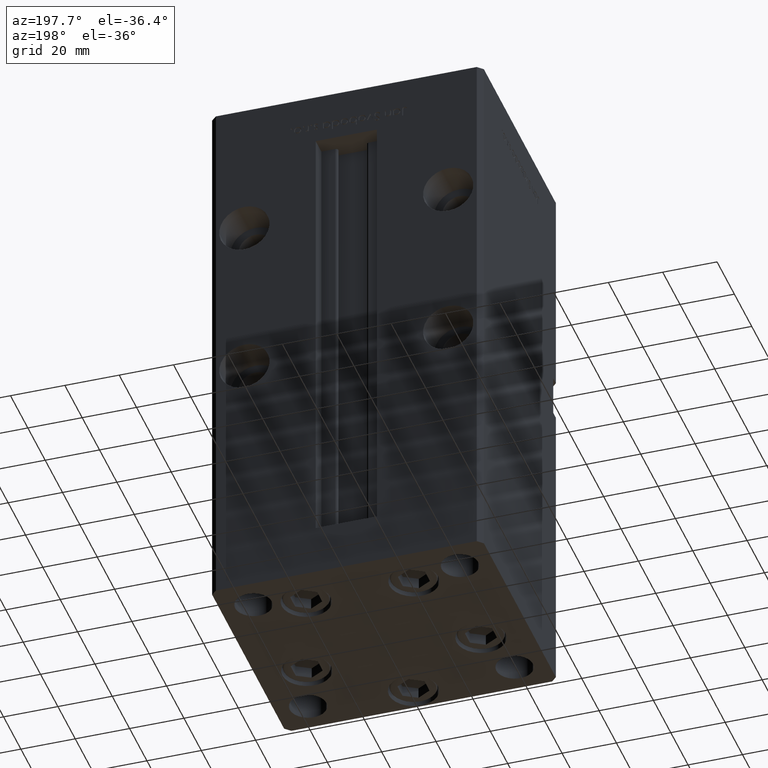
[diagram: clean part render]
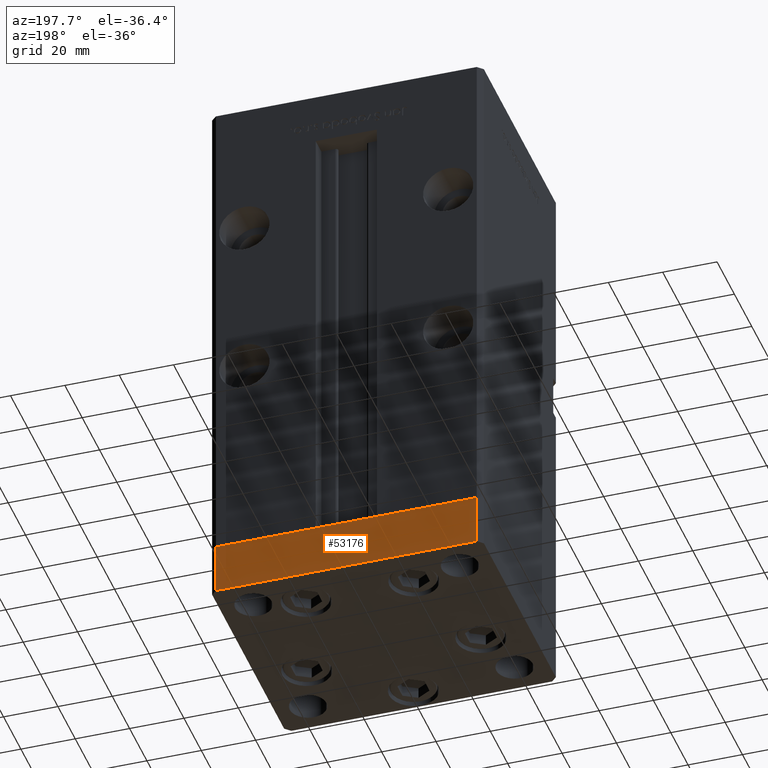
[diagram: same view with one face highlighted and labeled with its STEP entity id]
A machine part, auxiliary view. The second image highlights one B-rep face of the part: STEP entity #53176.
In plain terms, the highlighted planar face has unit normal (-0, 1, 0).
Its self-contained STEP definition (entity closure, byte-faithful):
#1233 = DIRECTION ( 'NONE',  ( -3.614007241618350743E-16, 1.000000000000000000, 0.000000000000000000 ) ) ;
#3453 = VECTOR ( 'NONE', #5491, 1000.000000000000000 ) ;
#5169 = CARTESIAN_POINT ( 'NONE',  ( 47.99999999999990763, 43.50000000000000000, 0.000000000000000000 ) ) ;
#5491 = DIRECTION ( 'NONE',  ( 0.000000000000000000, 0.000000000000000000, 1.000000000000000000 ) ) ;
#6384 = CARTESIAN_POINT ( 'NONE',  ( 47.99999999999990763, 43.50000000000000000, -19.00000000000000000 ) ) ;
#10414 = CARTESIAN_POINT ( 'NONE',  ( 47.99999999999990763, 43.50000000000000000, -19.00000000000000000 ) ) ;
#13314 = EDGE_CURVE ( 'NONE', #14749, #39355, #50124, .T. ) ;
#14197 = DIRECTION ( 'NONE',  ( -1.000000000000000000, -3.614007241618350743E-16, 0.000000000000000000 ) ) ;
#14749 = VERTEX_POINT ( 'NONE', #36421 ) ;
#16111 = EDGE_CURVE ( 'NONE', #51825, #47119, #26289, .T. ) ;
#16710 = DIRECTION ( 'NONE',  ( -1.000000000000000000, -3.614007241618350743E-16, 0.000000000000000000 ) ) ;
#17640 = DIRECTION ( 'NONE',  ( -1.000000000000000000, -3.614007241618350743E-16, 0.000000000000000000 ) ) ;
#17968 = LINE ( 'NONE', #10414, #18400 ) ;
#18400 = VECTOR ( 'NONE', #14197, 1000.000000000000000 ) ;
#21655 = CARTESIAN_POINT ( 'NONE',  ( 47.99999999999990763, 43.50000000000000000, -19.00000000000000000 ) ) ;
#21817 = EDGE_CURVE ( 'NONE', #47119, #39355, #25564, .T. ) ;
#25564 = LINE ( 'NONE', #37637, #49104 ) ;
#26289 = LINE ( 'NONE', #6384, #32713 ) ;
#27346 = ORIENTED_EDGE ( 'NONE', *, *, #13314, .T. ) ;
#28836 = EDGE_CURVE ( 'NONE', #51825, #14749, #17968, .T. ) ;
#32713 = VECTOR ( 'NONE', #35655, 1000.000000000000000 ) ;
#35655 = DIRECTION ( 'NONE',  ( 0.000000000000000000, 0.000000000000000000, 1.000000000000000000 ) ) ;
#36421 = CARTESIAN_POINT ( 'NONE',  ( -48.00000000000000711, 43.49999999999996447, -19.00000000000000000 ) ) ;
#37637 = CARTESIAN_POINT ( 'NONE',  ( 47.99999999999990763, 43.50000000000000000, 0.000000000000000000 ) ) ;
#38618 = ORIENTED_EDGE ( 'NONE', *, *, #28836, .T. ) ;
#39355 = VERTEX_POINT ( 'NONE', #50099 ) ;
#39894 = AXIS2_PLACEMENT_3D ( 'NONE', #21655, #1233, #17640 ) ;
#42050 = PLANE ( 'NONE',  #39894 ) ;
#42295 = CARTESIAN_POINT ( 'NONE',  ( -48.00000000000000711, 43.49999999999996447, -19.00000000000000000 ) ) ;
#44025 = CARTESIAN_POINT ( 'NONE',  ( 47.99999999999990763, 43.50000000000000000, -19.00000000000000000 ) ) ;
#45837 = FACE_OUTER_BOUND ( 'NONE', #48360, .T. ) ;
#45988 = ORIENTED_EDGE ( 'NONE', *, *, #16111, .F. ) ;
#47119 = VERTEX_POINT ( 'NONE', #5169 ) ;
#48360 = EDGE_LOOP ( 'NONE', ( #48816, #45988, #38618, #27346 ) ) ;
#48816 = ORIENTED_EDGE ( 'NONE', *, *, #21817, .F. ) ;
#49104 = VECTOR ( 'NONE', #16710, 1000.000000000000000 ) ;
#50099 = CARTESIAN_POINT ( 'NONE',  ( -48.00000000000000711, 43.49999999999996447, 0.000000000000000000 ) ) ;
#50124 = LINE ( 'NONE', #42295, #3453 ) ;
#51825 = VERTEX_POINT ( 'NONE', #44025 ) ;
#53176 = ADVANCED_FACE ( 'NONE', ( #45837 ), #42050, .T. ) ;